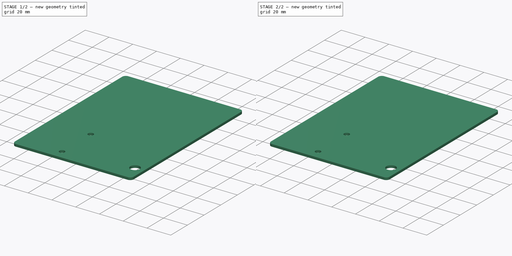
[diagram: build sequence overview — one tinted view per stage of 2, left to right]
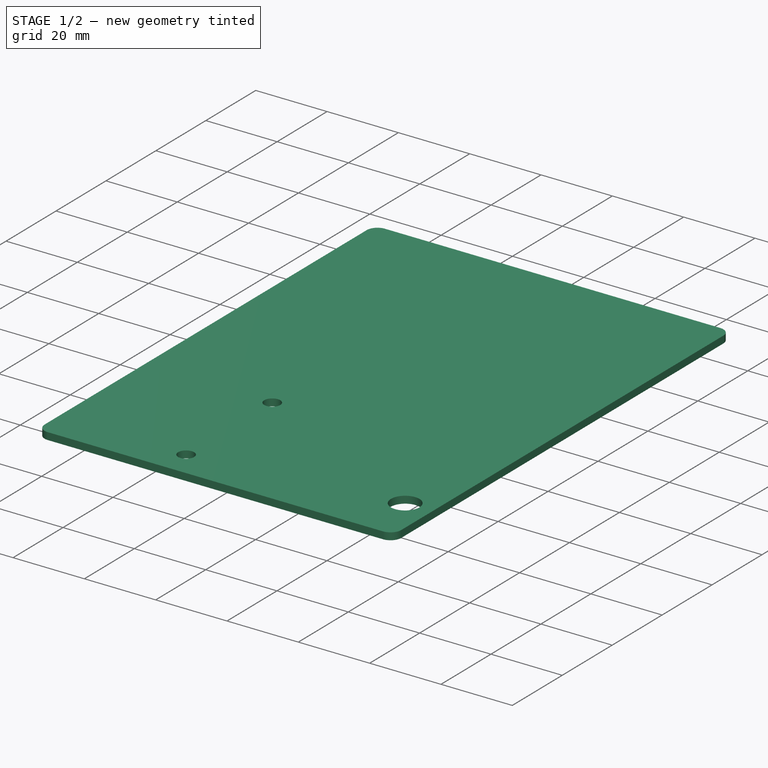
[diagram: stage 1 of 2 — iso view after this stage's code; geometry added in this stage tinted green]
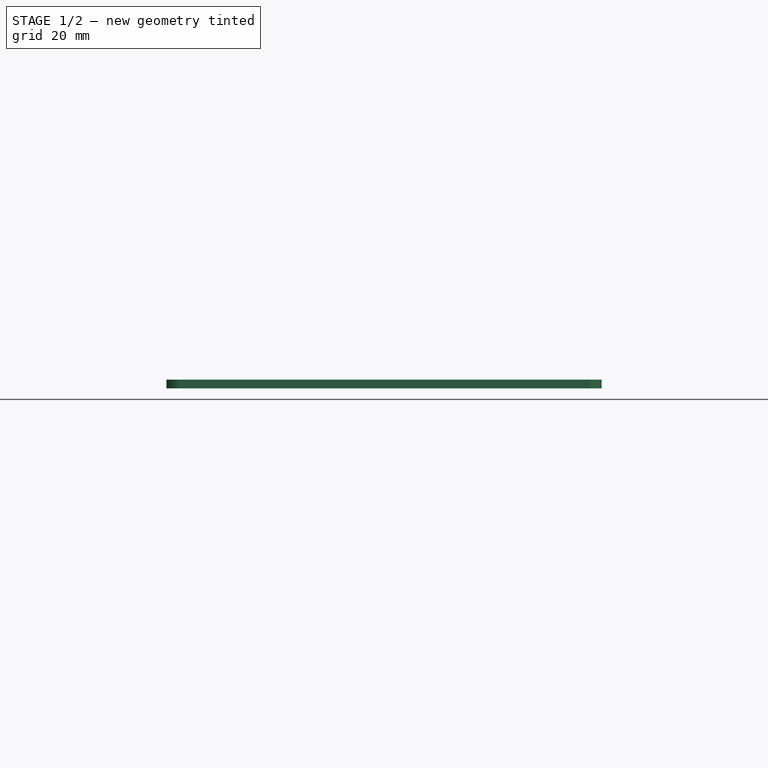
[diagram: stage 1 of 2 — front view after this stage's code; geometry added in this stage tinted green]
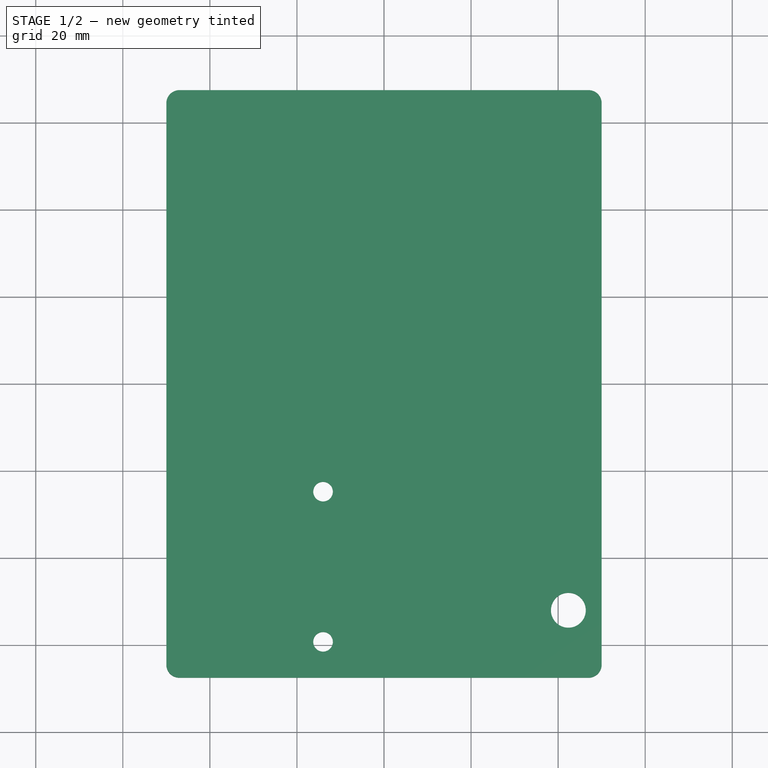
[diagram: stage 1 of 2 — top view after this stage's code; geometry added in this stage tinted green]
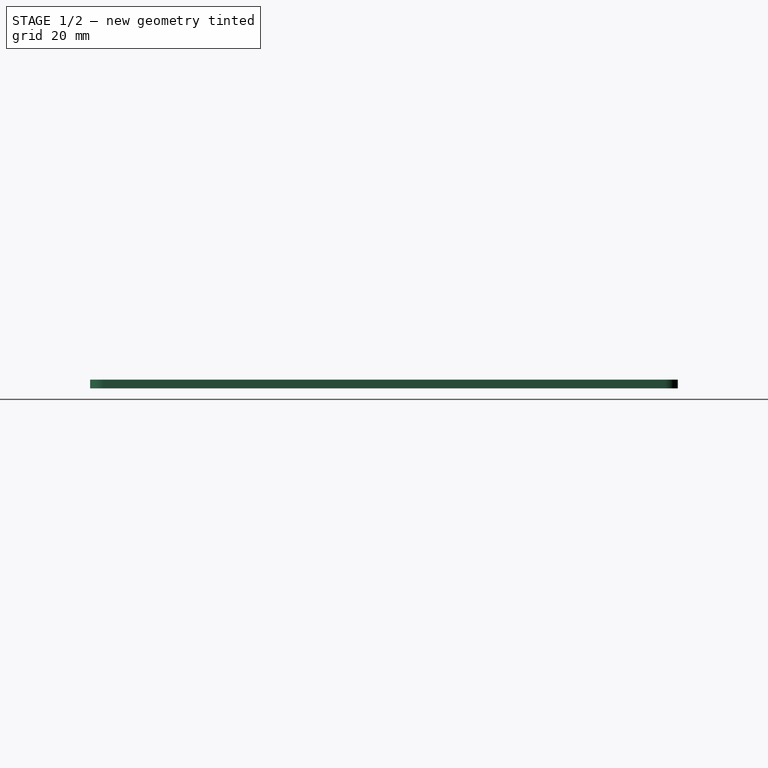
[diagram: stage 1 of 2 — right view after this stage's code; geometry added in this stage tinted green]
FCSTD DOCUMENT  (FreeCAD 0.22R36996 (Git))
Label: Jaackd Aeroponics Controller 2.0 - Scaffold
License: Creative Commons Attribution 4.0
LicenseURL: https://creativecommons.org/licenses/by/4.0/
objects: Sketcher::SketchObject×2, Spreadsheet::Sheet×1, PartDesign::SubShapeBinder×1, PartDesign::Pad×1, PartDesign::Hole×1, PartDesign::Body×1
note: 8 computed .brp shape members not serialized (recipe doc carries the construction recipe); baked Part::Feature solids carry a one-line shape summary decoded from their .brp
EXTERNAL_REF file=CrocSee 12V DC Diaphragm Transfer Pump 1.3 LPM.FCStd obj=Body

FEATURE [Spreadsheet::Sheet] Spreadsheet  label="config"
  cells = A2='Jaackd Scaffold Configuration; A3='JaackdScaffoldHeight; B3(JaackdScaffoldHeight)=135; A4='JaackdScaffoldWidth; B4(JaackdScaffoldWidth)=100; A5='JaackdScaffoldThickness; B5(JaackdScaffoldThickness)=2; A6='JaackdScaffoldCornerRadius; B6(JaackdScaffoldCornerRadius)=3; A7='JaackdScaffoldPicoPostHeight; B7(JaackdScaffoldPicoPostHeight)=5; A8='JaackdScaffoldPicoPostRadius; B8(JaackdScaffoldPicoPostRadius)=1.5; A9='JaackdScaffoldPicoDistanceFromEdge; B9(JaackdScaffoldPicoDistanceFromEdge)=5; A10='JaackdScaffoldBuckConverterPostHeight; B10(JaackdScaffoldBuckConverterPostHeight)=5; A11='JaackdScaffoldBuckConverterPostRadius; B11(JaackdScaffoldBuckConverterPostRadius)=2; A12='JaackdScaffoldBuckConverterDistanceFromEdge; B12(JaackdScaffoldBuckConverterDistanceFromEdge)=5; A13='JaackdScaffoldRelaySwitchPostHeight; B13(JaackdScaffoldRelaySwitchPostHeight)=5; A14='JaackdScaffoldRelaySwitchPostRadius; B14(JaackdScaffoldRelaySwitchPostRadius)=2; A15='JaackdScaffoldRelaySwitchDistanceFromEdge; B15(JaackdScaffoldRelaySwitchDistanceFromEdge)=5; A16='JaackdScaffoldTubingOutletHoleRadius; B16(JaackdScaffoldTubingOutletHoleRadius)=4; A17='JaackdScaffoldTubingOutletHoleDistanceFromOutlet; B17(JaackdScaffoldTubingOutletHoleDistanceFromOutlet)=8; A18='JaackdScaffoldCrocSeePumpTransformAngle; B18(JaackdScaffoldCrocSeePumpTransformAngle)=90; A19='JaackdScaffoldCrocSeePumpTransformX; B19(JaackdScaffoldCrocSeePumpTransformX)=-14; A20='JaackdScaffoldCrocSeePumpTransformY; B20(JaackdScaffoldCrocSeePumpTransformY)=-42; A22='CrocSee Pump Configuration; A23='CrocSeeConfig; A24='CrocSeeBracketWidth; B24(CrocSeeBracketWidth)=12.3; A25='CrocSeeBracketLength; B25(CrocSeeBracketLength)=43; A26='CrocSeeBracketCornerRadius; B26(CrocSeeBracketCornerRadius)=1; A27='CrocSeeBracketMountingHoleSpacing; B27(CrocSeeBracketMountingHoleSpacing)=34.5; A28='CrocSeeBracketMountingHoleDiameter; B28(CrocSeeBracketMountingHoleDiameter)=2.25; A29='CrocSeeBracketBaseThickness; B29(CrocSeeBracketBaseThickness)=4.5; A30='CrocSeeBracketRingInnerDiameter; B30(CrocSeeBracketRingInnerDiameter)=12; A31='CrocSeeBracketRingOuterDiameter; B31(CrocSeeBracketRingOuterDiameter)=15.1; A32='CrocSeeBracketOffset; B32(CrocSeeBracketOffset)==CrocSeeBodyPart1Length - CrocSeeBracketWidth / 2; A33='CrocSeeBodyPart1Radius; B33(CrocSeeBodyPart1Radius)=12.1; A34='CrocSeeBodyPart1Length; B34(CrocSeeBodyPart1Length)=29.3; A35='CrocSeeBodyPart2Radius; B35(CrocSeeBodyPart2Radius)=15.1; A36='CrocSeeBodyPart2Length; B36(CrocSeeBodyPart2Length)=30; A37='CrocSeeBodyConnector1BaseHeight; B37(CrocSeeBodyConnector1BaseHeight)=2.5; A38='CrocSeeBodyConnector1BaseInnerDiameter; B38(CrocSeeBodyConnector1BaseInnerDiameter)=1.7; A39='CrocSeeBodyConnector1BaseOuterDiameter; B39(CrocSeeBodyConnector1BaseOuterDiameter)=3.4; A40='CrocSeeBodyConnector1DistanceFromCenter; B40(CrocSeeBodyConnector1DistanceFromCenter)=10; A41='CrocSeeBodyConnector2BaseHeight; B41(CrocSeeBodyConnector2BaseHeight)=2.8; A42='CrocSeeBodyConnector2BaseInnerDiameter; B42(CrocSeeBodyConnector2BaseInnerDiameter)=1.3; A43='CrocSeeBodyConnector2BaseOuterDiameter; B43(CrocSeeBodyConnector2BaseOuterDiameter)=4.1; A44='CrocSeeBodyConnector1Part2Height; B44(CrocSeeBodyConnector1Part2Height)=6.2; A45='CrocSeeBodyConnector1Part2InnerDiameter; B45(CrocSeeBodyConnector1Part2InnerDiameter)=1.75; A46='CrocSeeBodyConnector1Part2OuterDiameter; B46(CrocSeeBodyConnector1Part2OuterDiameter)=2.75; A47='CrocSeeBodyConnector2Part2Height; B47(CrocSeeBodyConnector2Part2Height)=4.3; A48='CrocSeeBodyConnector2Part2InnerDiameter; B48(CrocSeeBodyConnector2Part2InnerDiameter)=1.4; A49='CrocSeeBodyConnector2Part2OuterDiameter; B49(CrocSeeBodyConnector2Part2OuterDiameter)=2.75; A50='CrocSeeBodyConnector1Part3InnerDiameter; B50(CrocSeeBodyConnector1Part3InnerDiameter)=3.5; A51='CrocSeeBodyConnector1Part3InnerDiameter; B51(CrocSeeBodyConnector1Part3InnerDiametertor1Part3InnerDiameter)=1.75; A52='CrocSeeBodyConnector1Part3OuterDiameter; B52(CrocSeeBodyConnector1Part3OuterDiameter)=3.1; A53='CrocSeeBodyConnector2Part3Height; B53(CrocSeeBodyConnector2Part3Height)=3.5; A54='CrocSeeBodyConnector2Part3InnerDiameter; B54(CrocSeeBodyConnector2Part3InnerDiameter)=1.4; A55='CrocSeeBodyConnector2Part3OuterDiameter; B55(CrocSeeBodyConnector2Part3OuterDiameter)=3.1
FEATURE [PartDesign::SubShapeBinder] Binder  label="Binder - CrocSee Pump"
  BindCopyOnChange = 0
  BindMode = 0
  ClaimChildren = false
  Context = -> Body [Binder.]
  Fuse = false
  MakeFace = true
  OffsetFill = false
  OffsetIntersection = false
  OffsetJoinType = 0
  OffsetOpenResult = false
  PartialLoad = false
  Placement = pos=(-14,-42,0) rot=(0,0,-1;1.5708rad)
  Relative = true
  Support = -> [<external CrocSee 12V DC Diaphragm Transfer Pump 1.3 LPM.FCStd>#Body[Pad009.Face36,Pad009.Face35,Pad009.Face8,Pad009.Face4,Pad009.Face26]]
  _Version = 2
  expr: .Placement.Base.x = <<config>>.JaackdScaffoldCrocSeePumpTransformX
  expr: .Placement.Base.y = <<config>>.JaackdScaffoldCrocSeePumpTransformY
  expr: .Placement.Rotation.Angle = <<config>>.JaackdScaffoldCrocSeePumpTransformAngle
FEATURE [Sketcher::SketchObject] Sketch  label="Base Sketch"
  AttachmentSupport = -> [XY_Plane]
  ExternalGeometry = -> [Binder]
  FullyConstrained = true
  MapMode = 5
  expr: Constraints[19] = <<config>>.JaackdScaffoldWidth
  expr: Constraints[20] = <<config>>.JaackdScaffoldHeight
  expr: Constraints[21] = <<config>>.JaackdScaffoldCornerRadius
  expr: Constraints[25] = <<config>>.JaackdScaffoldTubingOutletHoleRadius
  expr: Constraints[26] = <<config>>.JaackdScaffoldTubingOutletHoleDistanceFromOutlet
  expr: Constraints[30] = <<config>>.CrocSeeBracketMountingHoleDiameter
  sketch-geometry (14):
    g0: LineSegment StartX=-50 StartY=64.5 StartZ=0 EndX=-50 EndY=-64.5 EndZ=0
    g1: LineSegment StartX=-47 StartY=-67.5 StartZ=0 EndX=47 EndY=-67.5 EndZ=0
    g2: LineSegment StartX=50 StartY=-64.5 StartZ=0 EndX=50 EndY=64.5 EndZ=0
    g3: LineSegment StartX=47 StartY=67.5 StartZ=0 EndX=-47 EndY=67.5 EndZ=0
    g4: ArcOfCircle CenterX=-47 CenterY=64.5 CenterZ=0 NormalX=0 NormalY=0 NormalZ=1 AngleXU=0 Radius=3 StartAngle=1.5708 EndAngle=3.14159
    g5: ArcOfCircle CenterX=-47 CenterY=-64.5 CenterZ=0 NormalX=0 NormalY=0 NormalZ=1 AngleXU=0 Radius=3 StartAngle=3.14159 EndAngle=4.71239
    g6: ArcOfCircle CenterX=47 CenterY=-64.5 CenterZ=0 NormalX=0 NormalY=0 NormalZ=1 AngleXU=0 Radius=3 StartAngle=4.71239 EndAngle=6.28319
    g7: ArcOfCircle CenterX=47 CenterY=64.5 CenterZ=0 NormalX=0 NormalY=0 NormalZ=1 AngleXU=0 Radius=3 StartAngle=-9e-16 EndAngle=1.5708
    g8: GeomPoint X=-50 Y=67.5 Z=0
    g9: GeomPoint X=50 Y=-67.5 Z=0
    g10: Circle CenterX=-14 CenterY=-24.75 CenterZ=0 NormalX=0 NormalY=0 NormalZ=1 AngleXU=0 Radius=2.25
    g11: Circle CenterX=-14 CenterY=-59.25 CenterZ=0 NormalX=0 NormalY=0 NormalZ=1 AngleXU=0 Radius=2.25
    g12: Circle CenterX=42.35 CenterY=-52 CenterZ=0 NormalX=0 NormalY=0 NormalZ=1 AngleXU=0 Radius=4
    g13: GeomPoint X=34.35 Y=-52 Z=0
  constraints (31):
    c: Tangent(g0,g4) = -1.5708
    c: Tangent(g0,g5) = -1.5708
    c: Tangent(g1,g5) = -1.5708
    c: Tangent(g1,g6) = -1.5708
    c: Tangent(g2,g6) = -1.5708
    c: Tangent(g2,g7) = -1.5708
    c: Tangent(g3,g7) = -1.5708
    c: Tangent(g3,g4) = -1.5708
    c: Vertical(g0)
    c: Vertical(g2)
    c: Horizontal(g1)
    c: Horizontal(g3)
    c: Equal(g4,g5)
    c: Equal(g5,g6)
    c: Equal(g6,g7)
    c: PointOnObject(g8,g0)
    c: PointOnObject(g8,g3)
    c: PointOnObject(g9,g1)
    c: PointOnObject(g9,g2)
    c: Distance(g0,g2) = 100
    c: Distance(g1,g3) = 135
    c: Radius(g5) = 3
    c: Symmetric(g7,g5,g-1)
    c: Symmetric(g-6,g-6,g13)
    c: Horizontal(g12,g13)
    c: Radius(g12) = 4
    c: DistanceX(g13,g12) = 8
    c: Coincident(g-3,g10)
    c: Coincident(g-4,g11)
    c: Equal(g10,g11)
    c: Radius(g10) = 2.25
FEATURE [Sketcher::SketchObject] Sketch001  label="Base Pump Hole Sketch"
  AttachmentSupport = -> [XY_Plane]
  ExternalGeometry = -> [Binder]
  FullyConstrained = true
  MapMode = 5
  expr: Constraints[19] = <<config>>.JaackdScaffoldWidth
  expr: Constraints[20] = <<config>>.JaackdScaffoldHeight
  expr: Constraints[21] = <<config>>.JaackdScaffoldCornerRadius
  expr: Constraints[25] = <<config>>.JaackdScaffoldTubingOutletHoleRadius
  expr: Constraints[26] = <<config>>.JaackdScaffoldTubingOutletHoleDistanceFromOutlet
  expr: Constraints[30] = <<config>>.CrocSeeBracketMountingHoleDiameter
  sketch-geometry (14):
    g0: LineSegment StartX=-50 StartY=64.5 StartZ=0 EndX=-50 EndY=-64.5 EndZ=0
    g1: LineSegment StartX=-47 StartY=-67.5 StartZ=0 EndX=47 EndY=-67.5 EndZ=0
    g2: LineSegment StartX=50 StartY=-64.5 StartZ=0 EndX=50 EndY=64.5 EndZ=0
    g3: LineSegment StartX=47 StartY=67.5 StartZ=0 EndX=-47 EndY=67.5 EndZ=0
    g4: ArcOfCircle CenterX=-47 CenterY=64.5 CenterZ=0 NormalX=0 NormalY=0 NormalZ=1 AngleXU=0 Radius=3 StartAngle=1.5708 EndAngle=3.14159
    g5: ArcOfCircle CenterX=-47 CenterY=-64.5 CenterZ=0 NormalX=0 NormalY=0 NormalZ=1 AngleXU=0 Radius=3 StartAngle=3.14159 EndAngle=4.71239
    g6: ArcOfCircle CenterX=47 CenterY=-64.5 CenterZ=0 NormalX=0 NormalY=0 NormalZ=1 AngleXU=0 Radius=3 StartAngle=4.71239 EndAngle=6.28319
    g7: ArcOfCircle CenterX=47 CenterY=64.5 CenterZ=0 NormalX=0 NormalY=0 NormalZ=1 AngleXU=0 Radius=3 StartAngle=-9e-16 EndAngle=1.5708
    g8: GeomPoint X=-50 Y=67.5 Z=0
    g9: GeomPoint X=50 Y=-67.5 Z=0
    g10: Circle CenterX=-14 CenterY=-24.75 CenterZ=0 NormalX=0 NormalY=0 NormalZ=1 AngleXU=0 Radius=2.25
    g11: Circle CenterX=-14 CenterY=-59.25 CenterZ=0 NormalX=0 NormalY=0 NormalZ=1 AngleXU=0 Radius=2.25
    g12: Circle CenterX=42.35 CenterY=-52 CenterZ=0 NormalX=0 NormalY=0 NormalZ=1 AngleXU=0 Radius=4
    g13: GeomPoint X=34.35 Y=-52 Z=0
  constraints (31):
    c: Tangent(g0,g4) = -1.5708
    c: Tangent(g0,g5) = -1.5708
    c: Tangent(g1,g5) = -1.5708
    c: Tangent(g1,g6) = -1.5708
    c: Tangent(g2,g6) = -1.5708
    c: Tangent(g2,g7) = -1.5708
    c: Tangent(g3,g7) = -1.5708
    c: Tangent(g3,g4) = -1.5708
    c: Vertical(g0)
    c: Vertical(g2)
    c: Horizontal(g1)
    c: Horizontal(g3)
    c: Equal(g4,g5)
    c: Equal(g5,g6)
    c: Equal(g6,g7)
    c: PointOnObject(g8,g0)
    c: PointOnObject(g8,g3)
    c: PointOnObject(g9,g1)
    c: PointOnObject(g9,g2)
    c: Distance(g0,g2) = 100
    c: Distance(g1,g3) = 135
    c: Radius(g5) = 3
    c: Symmetric(g7,g5,g-1)
    c: Symmetric(g-6,g-6,g13)
    c: Horizontal(g12,g13)
    c: Radius(g12) = 4
    c: DistanceX(g13,g12) = 8
    c: Coincident(g-3,g10)
    c: Coincident(g-4,g11)
    c: Equal(g10,g11)
    c: Radius(g10) = 2.25
FEATURE [PartDesign::Pad] Pad
  Direction = (0,0,1)
  Length = 2
  Length2 = 10
  Profile = -> Sketch
  ReferenceAxis = -> Sketch [N_Axis]
  Suppressed = false
  Type = 0
  expr: Length = <<config>>.JaackdScaffoldThickness
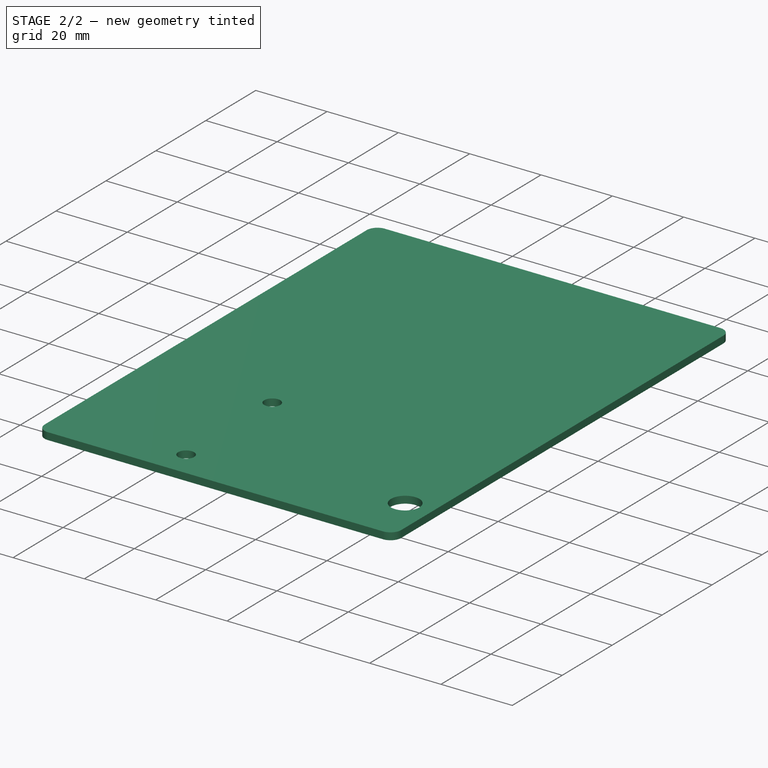
[diagram: stage 2 of 2 — iso view after this stage's code; geometry added in this stage tinted green]
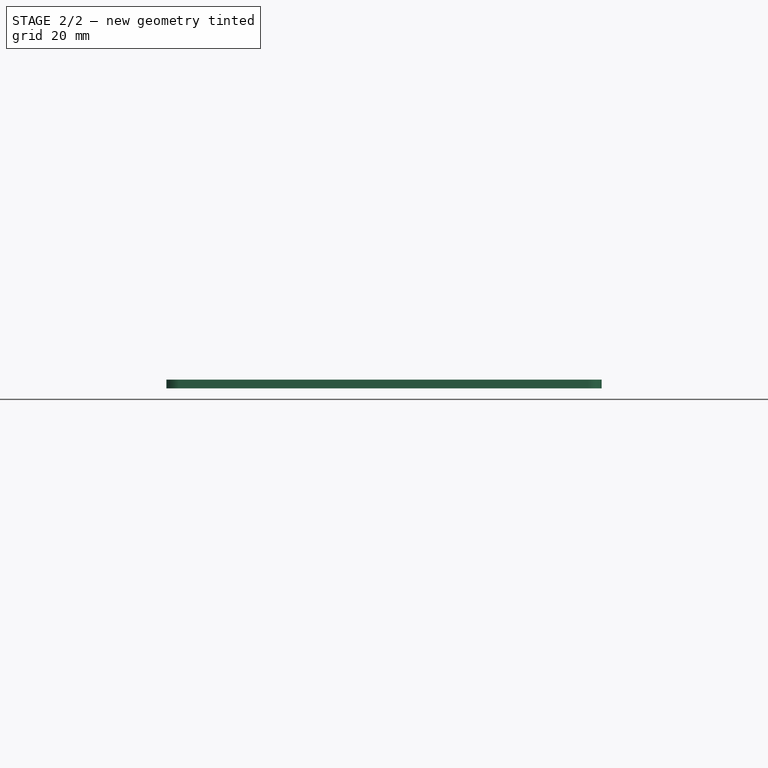
[diagram: stage 2 of 2 — front view after this stage's code; geometry added in this stage tinted green]
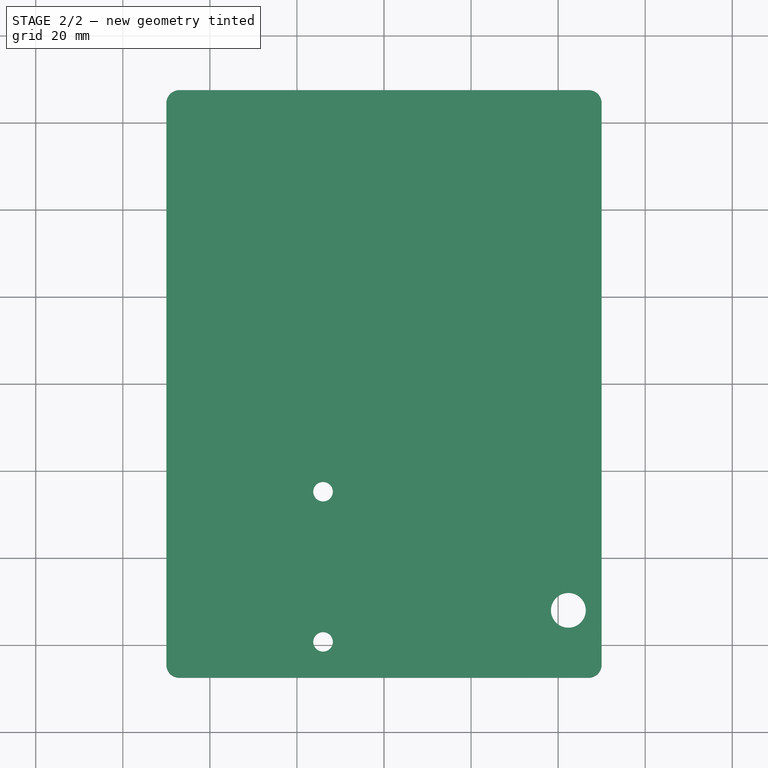
[diagram: stage 2 of 2 — top view after this stage's code; geometry added in this stage tinted green]
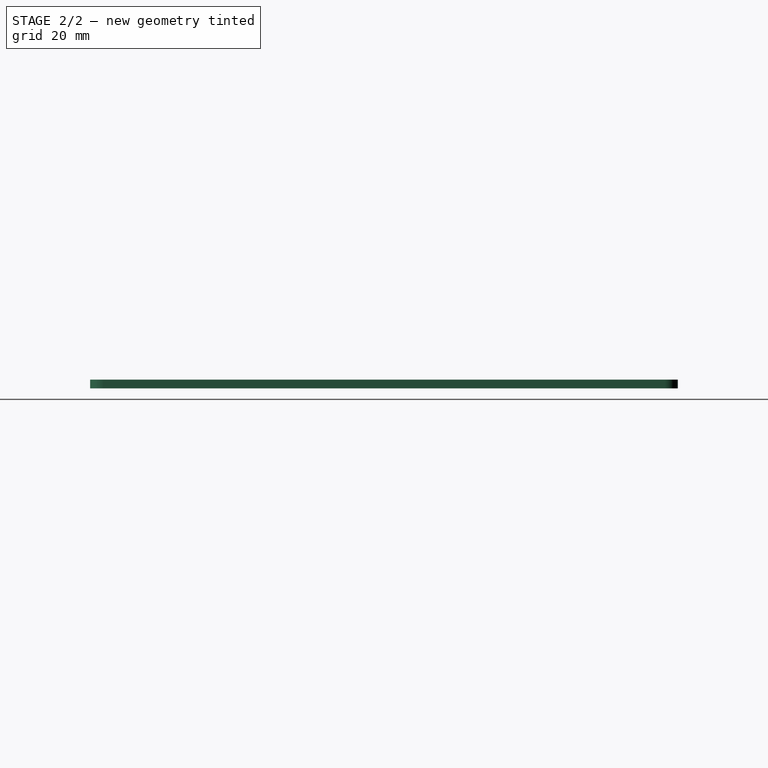
[diagram: stage 2 of 2 — right view after this stage's code; geometry added in this stage tinted green]
FEATURE [PartDesign::Hole] Hole
  BaseFeature = -> Pad
  CustomThreadClearance = 0
  Depth = 339.39
  DepthType = 1
  Diameter = 3.322
  DrillForDepth = false
  DrillPoint = 1
  DrillPointAngle = 118
  HoleCutCountersinkAngle = 90
  HoleCutCustomValues = false
  HoleCutDepth = 0
  HoleCutDiameter = 6.1
  HoleCutType = 0
  ModelThread = true
  Profile = -> Pad [Edge33,Edge30]
  Suppressed = false
  Tapered = false
  TaperedAngle = 90
  ThreadClass = 0
  ThreadDepth = 339.39
  ThreadDepthType = 0
  ThreadDirection = 0
  ThreadFit = 0
  ThreadSize = 11
  ThreadType = 1
  Threaded = true
  UseCustomThreadClearance = false
FEATURE [PartDesign::Body] Body
  Group = -> [Binder,Sketch,Sketch001,Pad,Hole]
  Origin = -> Origin
  Tip = -> Hole
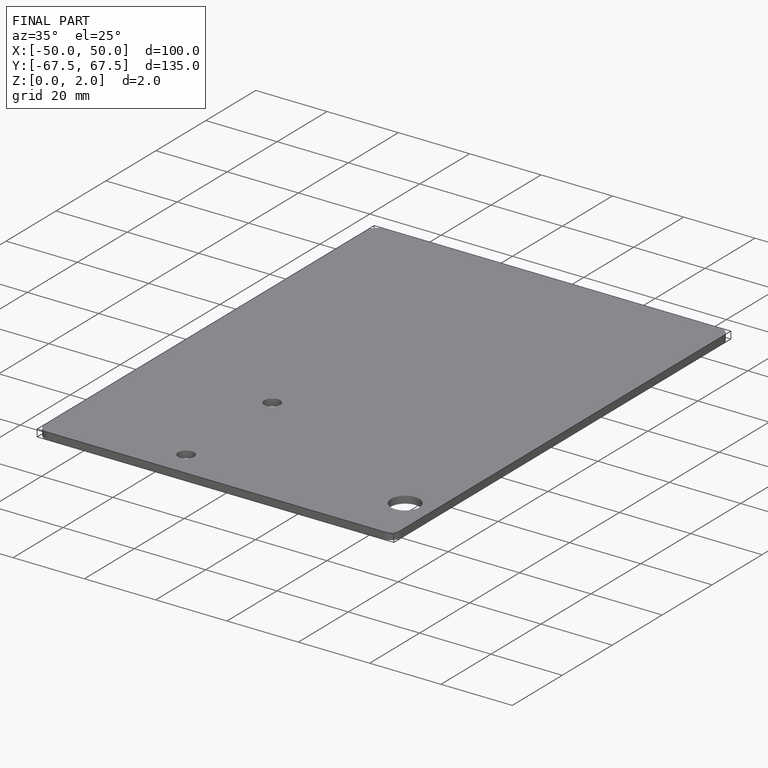
[diagram: finished part — iso view with bounding-box wireframe]
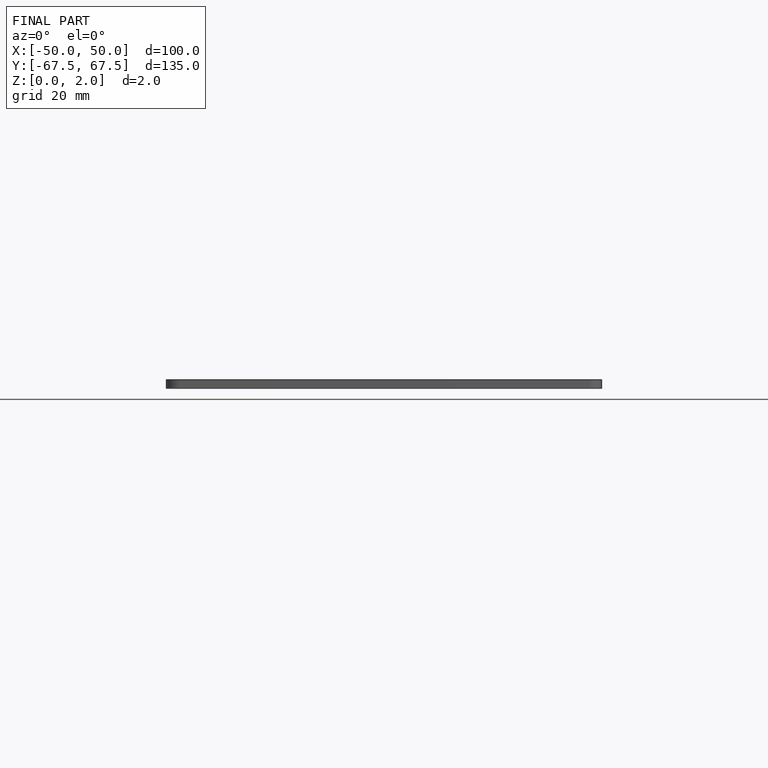
[diagram: finished part — front view with bounding-box wireframe]
